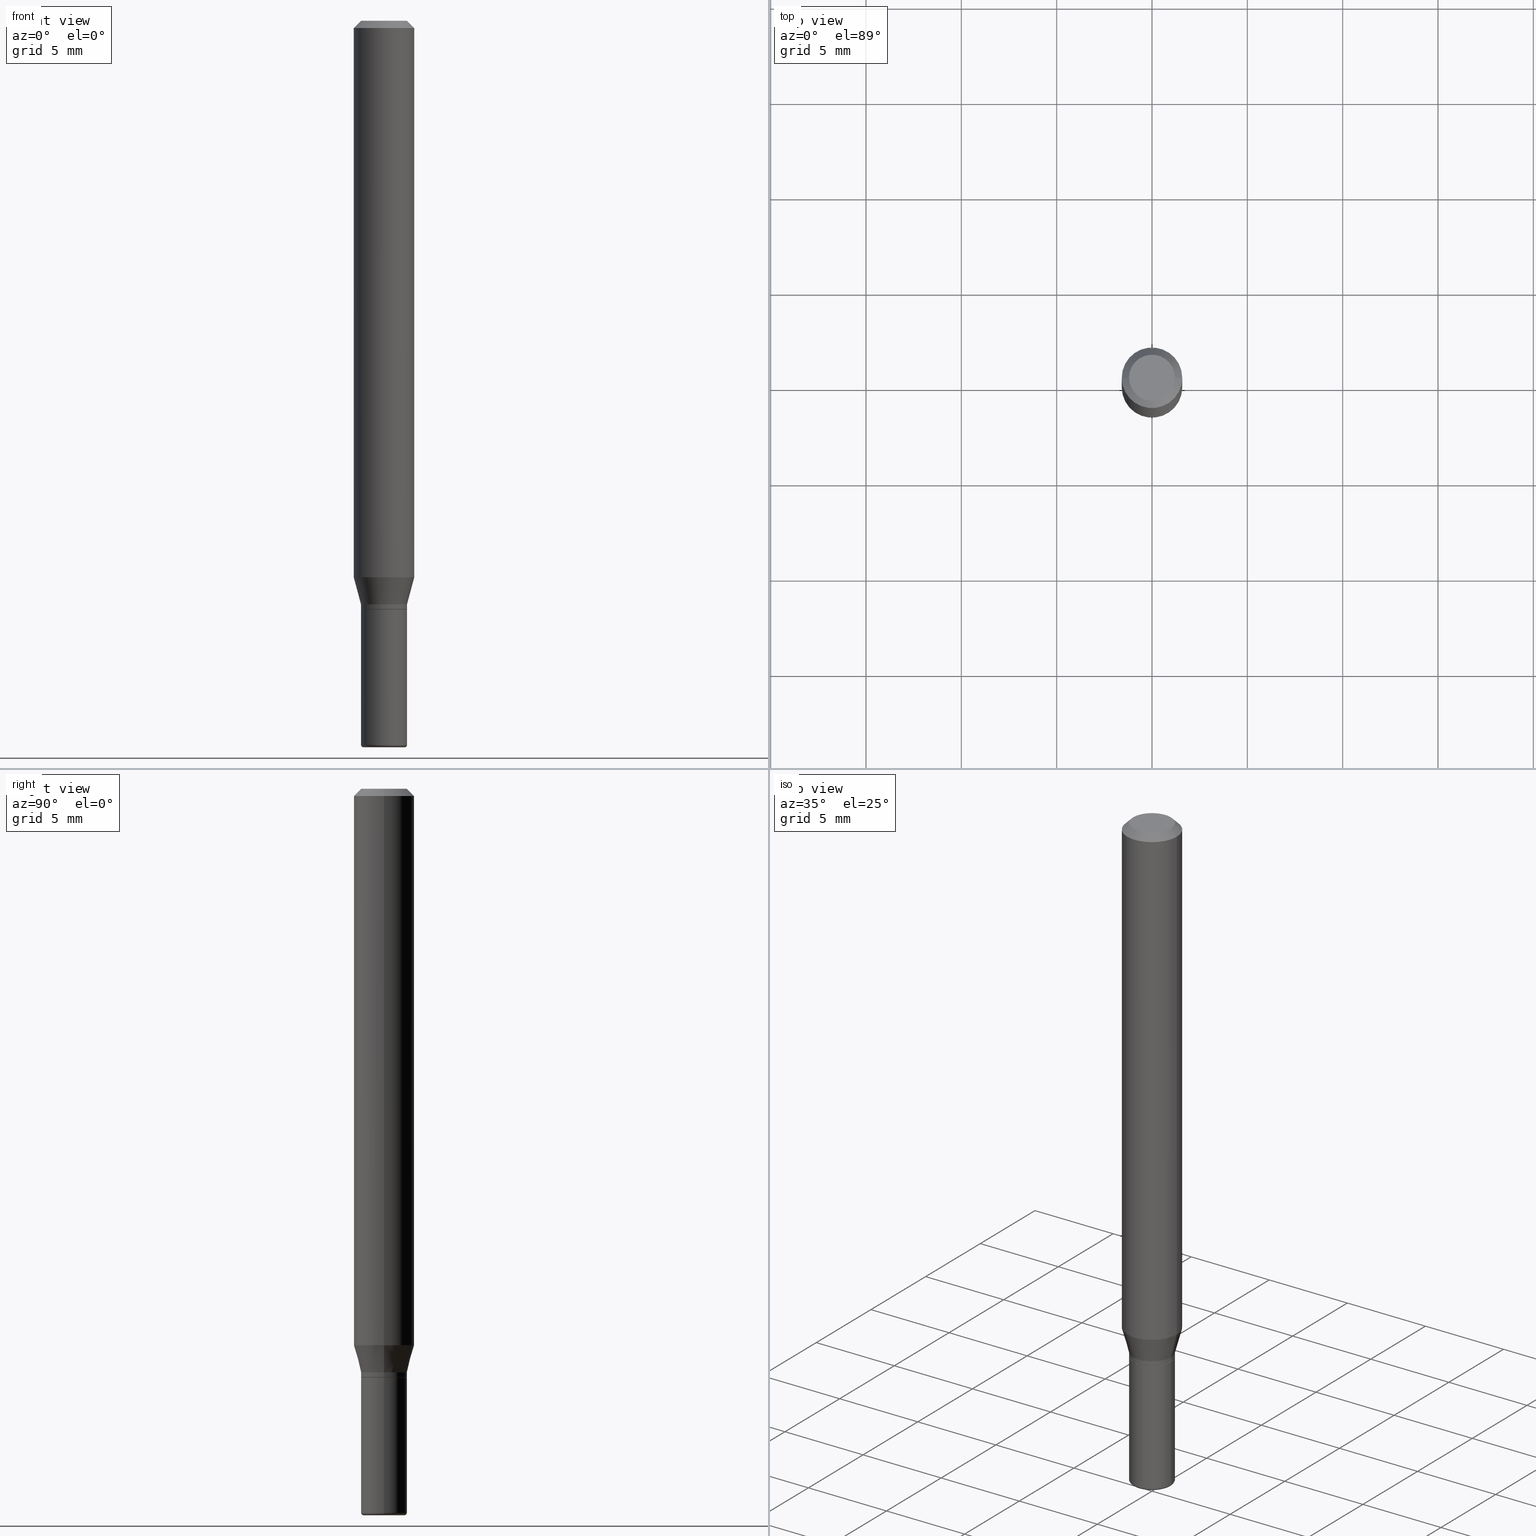
[diagram: canonical four-view strip — front | top / right | iso, engineering-drawing reading convention]
A machine part, canonical four-view strip (front | top / right | iso — engineering-drawing reading convention). The complete STEP part file that produces these views, byte-faithful:
ISO-10303-21;
HEADER;
FILE_DESCRIPTION (( 'STEP AP203' ),
    '1' );
FILE_NAME ('08584.STEP',
    '2024-02-29T19:52:41',
    ( '' ),
    ( '' ),
    'SwSTEP 2.0',
    'SolidWorks 2023',
    '' );
FILE_SCHEMA (( 'CONFIG_CONTROL_DESIGN' ));
ENDSEC;

DATA;
#1 = COORDINATED_UNIVERSAL_TIME_OFFSET ( 5, 0, .BEHIND. ) ;
#2 = ORIENTED_EDGE ( 'NONE', *, *, #54, .F. ) ;
#3 = EDGE_CURVE ( 'NONE', #24, #459, #379, .T. ) ;
#4 = FACE_OUTER_BOUND ( 'NONE', #27, .T. ) ;
#5 = APPROVAL ( #218, 'UNSPECIFIED' ) ;
#6 = VERTEX_POINT ( 'NONE', #428 ) ;
#7 = DIRECTION ( 'NONE',  ( -2.445468806185136597E-29, 3.491481338843145583E-15, 1.000000000000000000 ) ) ;
#8 = CARTESIAN_POINT ( 'NONE',  ( 0.04749999999999994504, -3.316907271900973138E-16, 2.316183968503066979E-30 ) ) ;
#9 = APPROVAL_DATE_TIME ( #47, #13 ) ;
#10 = LOCAL_TIME ( 14, 52, 41.00000000000000000, #495 ) ;
#11 = DIRECTION ( 'NONE',  ( 2.445468806185136597E-29, -3.491481338843145583E-15, -1.000000000000000000 ) ) ;
#12 = CARTESIAN_POINT ( 'NONE',  ( -0.04749999999999994504, 3.375077994860471978E-16, -2.336494167871077458E-30 ) ) ;
#13 = APPROVAL ( #85, 'UNSPECIFIED' ) ;
#14 = CYLINDRICAL_SURFACE ( 'NONE', #312, 0.06250000000000000000 ) ;
#15 = FACE_OUTER_BOUND ( 'NONE', #68, .T. ) ;
#16 = LOCAL_TIME ( 14, 52, 41.00000000000000000, #1 ) ;
#17 = AXIS2_PLACEMENT_3D ( 'NONE', #315, #473, #123 ) ;
#18 = ORIENTED_EDGE ( 'NONE', *, *, #36, .T. ) ;
#19 = TOROIDAL_SURFACE ( 'NONE', #308, 0.04249999999999999611, 0.004999999999999908164 ) ;
#20 = CYLINDRICAL_SURFACE ( 'NONE', #94, 0.04749999999999995198 ) ;
#21 = EDGE_LOOP ( 'NONE', ( #224, #34, #393, #241 ) ) ;
#22 = CARTESIAN_POINT ( 'NONE',  ( 3.316907271901273398E-16, 0.04749999999999575395, -1.215000000000000302 ) ) ;
#23 = EDGE_CURVE ( 'NONE', #424, #24, #238, .T. ) ;
#24 = VERTEX_POINT ( 'NONE', #159 ) ;
#25 = DIRECTION ( 'NONE',  ( 1.000000000000000000, -6.982962677686257244E-15, 0.000000000000000000 ) ) ;
#26 = PERSON_AND_ORGANIZATION ( #406, #139 ) ;
#27 = EDGE_LOOP ( 'NONE', ( #460, #197, #382, #261 ) ) ;
#28 = FACE_OUTER_BOUND ( 'NONE', #371, .T. ) ;
#29 = AXIS2_PLACEMENT_3D ( 'NONE', #240, #7, #88 ) ;
#30 = LOCAL_TIME ( 14, 52, 41.00000000000000000, #142 ) ;
#31 = EDGE_CURVE ( 'NONE', #6, #459, #510, .T. ) ;
#32 = ORIENTED_EDGE ( 'NONE', *, *, #87, .T. ) ;
#33 = DIRECTION ( 'NONE',  ( 1.000000000000000000, -6.982962677686266711E-15, 4.852736867747365086E-29 ) ) ;
#34 = ORIENTED_EDGE ( 'NONE', *, *, #250, .T. ) ;
#35 = CARTESIAN_POINT ( 'NONE',  ( 0.06250000000000000000, -4.364351673553916694E-16, 3.047610484872459871E-30 ) ) ;
#36 = EDGE_CURVE ( 'NONE', #117, #113, #72, .T. ) ;
#37 = DIRECTION ( 'NONE',  ( 2.445468806185136597E-29, -3.491481338843145583E-15, -1.000000000000000000 ) ) ;
#38 = CIRCLE ( 'NONE', #385, 0.04749999999999999362 ) ;
#39 = AXIS2_PLACEMENT_3D ( 'NONE', #209, #488, #361 ) ;
#40 = VERTEX_POINT ( 'NONE', #43 ) ;
#41 = DATE_TIME_ROLE ( 'classification_date' ) ;
#42 = FACE_OUTER_BOUND ( 'NONE', #303, .T. ) ;
#43 = CARTESIAN_POINT ( 'NONE',  ( -0.06250000000000000000, -1.587986513717445910E-15, -0.01499999999999970281 ) ) ;
#44 = AXIS2_PLACEMENT_3D ( 'NONE', #118, #275, #347 ) ;
#45 = APPLICATION_PROTOCOL_DEFINITION ( 'international standard', 'config_control_design', 1994, #484 ) ;
#46 = CIRCLE ( 'NONE', #462, 0.06250000000000000000 ) ;
#47 = DATE_AND_TIME ( #392, #499 ) ;
#48 = ADVANCED_FACE ( 'NONE', ( #42 ), #170, .T. ) ;
#49 = ORIENTED_EDGE ( 'NONE', *, *, #489, .T. ) ;
#50 = ORIENTED_EDGE ( 'NONE', *, *, #250, .F. ) ;
#51 = FACE_OUTER_BOUND ( 'NONE', #214, .T. ) ;
#52 = CARTESIAN_POINT ( 'NONE',  ( 0.04749999999999995198, -3.316907271900973631E-16, 2.316183968503067330E-30 ) ) ;
#53 = CARTESIAN_POINT ( 'NONE',  ( -0.04749999999999995198, 3.375077994860472471E-16, -2.336494167871077808E-30 ) ) ;
#54 = EDGE_CURVE ( 'NONE', #227, #408, #259, .T. ) ;
#55 = DIRECTION ( 'NONE',  ( 0.7071067811865479058, -7.319954787623257623E-15, -0.7071067811865471286 ) ) ;
#56 = AXIS2_PLACEMENT_3D ( 'NONE', #96, #338, #212 ) ;
#57 = CC_DESIGN_APPROVAL ( #5, ( #104 ) ) ;
#58 = DIMENSIONAL_EXPONENTS ( 1.000000000000000000, 0.000000000000000000, 0.000000000000000000, 0.000000000000000000, 0.000000000000000000, 0.000000000000000000, 0.000000000000000000 ) ;
#59 = DIRECTION ( 'NONE',  ( -0.7071067811865479058, 2.468850131082261005E-15, -0.7071067811865471286 ) ) ;
#60 = CARTESIAN_POINT ( 'NONE',  ( 0.000000000000000000, 0.000000000000000000, 0.000000000000000000 ) ) ;
#61 = LINE ( 'NONE', #52, #434 ) ;
#62 = CIRCLE ( 'NONE', #345, 0.04749999999999990341 ) ;
#63 = ORIENTED_EDGE ( 'NONE', *, *, #228, .T. ) ;
#64 = CIRCLE ( 'NONE', #276, 0.04749999999999993811 ) ;
#65 = PLANE ( 'NONE',  #95 ) ;
#66 = CALENDAR_DATE ( 2024, 29, 2 ) ;
#67 = CARTESIAN_POINT ( 'NONE',  ( 3.668203209277632395E-31, -5.237222008264614861E-17, -0.01499999999999970281 ) ) ;
#68 = EDGE_LOOP ( 'NONE', ( #415, #456, #355, #417 ) ) ;
#69 = CARTESIAN_POINT ( 'NONE',  ( 2.971244599514941458E-29, -4.242149826694422488E-15, -1.215000000000000080 ) ) ;
#70 = DATE_AND_TIME ( #66, #30 ) ;
#71 = VERTEX_POINT ( 'NONE', #151 ) ;
#72 = CIRCLE ( 'NONE', #186, 0.04750000000000000749 ) ;
#73 = CONICAL_SURFACE ( 'NONE', #353, 0.06250000000000000000, 0.7853981633974488341 ) ;
#74 = CC_DESIGN_PERSON_AND_ORGANIZATION_ASSIGNMENT ( #449, #177, ( #293 ) ) ;
#75 = DIRECTION ( 'NONE',  ( 1.000000000000000000, -6.982962677686257244E-15, 0.000000000000000000 ) ) ;
#76 = CC_DESIGN_PERSON_AND_ORGANIZATION_ASSIGNMENT ( #423, #232, ( #455 ) ) ;
#77 = ORIENTED_EDGE ( 'NONE', *, *, #503, .F. ) ;
#78 = ORIENTED_EDGE ( 'NONE', *, *, #154, .T. ) ;
#79 = CLOSED_SHELL ( 'NONE', ( #435, #48, #331, #376, #168, #116, #282, #514, #111, #325, #348, #130 ) ) ;
#80 = TOROIDAL_SURFACE ( 'NONE', #165, 0.04249999999999999611, 0.004999999999999908164 ) ;
#81 = DIRECTION ( 'NONE',  ( -0.7071067811866199593, 7.493145998870616062E-15, 0.7071067811864750752 ) ) ;
#82 = ORIENTED_EDGE ( 'NONE', *, *, #444, .F. ) ;
#83 = CARTESIAN_POINT ( 'NONE',  ( 0.04749999999999990341, -5.551455328760601441E-15, -1.495000000000000329 ) ) ;
#84 = EDGE_CURVE ( 'NONE', #463, #192, #461, .T. ) ;
#85 = APPROVAL_STATUS ( 'not_yet_approved' ) ;
#86 = CARTESIAN_POINT ( 'NONE',  ( -0.06250000000000000000, -3.567690017202308146E-15, -1.149019237886466538 ) ) ;
#87 = EDGE_CURVE ( 'NONE', #182, #397, #280, .T. ) ;
#88 = DIRECTION ( 'NONE',  ( 1.000000000000000000, -6.982962677686266711E-15, 0.000000000000000000 ) ) ;
#89 = CIRCLE ( 'NONE', #368, 0.04750000000000000749 ) ;
#90 = DIRECTION ( 'NONE',  ( -2.445468806185136597E-29, 3.491481338843145583E-15, 1.000000000000000000 ) ) ;
#91 = CARTESIAN_POINT ( 'NONE',  ( -6.680649051745406845E-45, 9.538196290434862081E-31, 2.731847993664263218E-16 ) ) ;
#92 = DIRECTION ( 'NONE',  ( -2.445468806185136597E-29, 3.491481338843145583E-15, 1.000000000000000000 ) ) ;
#93 = DIRECTION ( 'NONE',  ( -2.445468806185136597E-29, 3.491481338843145583E-15, 1.000000000000000000 ) ) ;
#94 = AXIS2_PLACEMENT_3D ( 'NONE', #99, #490, #294 ) ;
#95 = AXIS2_PLACEMENT_3D ( 'NONE', #22, #137, #107 ) ;
#96 = CARTESIAN_POINT ( 'NONE',  ( 0.000000000000000000, 0.000000000000000000, 0.000000000000000000 ) ) ;
#97 = DIRECTION ( 'NONE',  ( -2.445468806185136597E-29, 3.491481338843145583E-15, 1.000000000000000000 ) ) ;
#98 = VERTEX_POINT ( 'NONE', #86 ) ;
#99 = CARTESIAN_POINT ( 'NONE',  ( 0.000000000000000000, 0.000000000000000000, 0.000000000000000000 ) ) ;
#100 = DIRECTION ( 'NONE',  ( 0.000000000000000000, 0.000000000000000000, 1.000000000000000000 ) ) ;
#101 = ORIENTED_EDGE ( 'NONE', *, *, #235, .F. ) ;
#102 = DIRECTION ( 'NONE',  ( -2.445468806185136597E-29, 3.491481338843145583E-15, 1.000000000000000000 ) ) ;
#103 = FACE_OUTER_BOUND ( 'NONE', #190, .T. ) ;
#104 = PRODUCT_DEFINITION ( 'UNKNOWN', '', #455, #272 ) ;
#105 = CONICAL_SURFACE ( 'NONE', #274, 0.04749999999999993811, 0.2617993877991493523 ) ;
#106 = ORIENTED_EDGE ( 'NONE', *, *, #246, .T. ) ;
#107 = DIRECTION ( 'NONE',  ( -1.000000000000000000, 6.982962677686265922E-15, -4.876176775795935793E-29 ) ) ;
#108 = EDGE_CURVE ( 'NONE', #192, #98, #318, .T. ) ;
#109 = LINE ( 'NONE', #290, #498 ) ;
#110 = APPROVAL_DATE_TIME ( #70, #5 ) ;
#111 = ADVANCED_FACE ( 'NONE', ( #230 ), #465, .F. ) ;
#112 = ORIENTED_EDGE ( 'NONE', *, *, #444, .T. ) ;
#113 = VERTEX_POINT ( 'NONE', #513 ) ;
#114 = VECTOR ( 'NONE', #220, 39.37007874015748854 ) ;
#115 = CARTESIAN_POINT ( 'NONE',  ( -0.04749999999999993811, -3.869727213819942557E-15, -1.204999999999999849 ) ) ;
#116 = ADVANCED_FACE ( 'NONE', ( #398 ), #468, .T. ) ;
#117 = VERTEX_POINT ( 'NONE', #286 ) ;
#118 = CARTESIAN_POINT ( 'NONE',  ( 2.970021865111848657E-29, -4.240404086025000985E-15, -1.214500000000000357 ) ) ;
#119 = AXIS2_PLACEMENT_3D ( 'NONE', #69, #169, #134 ) ;
#120 = APPROVAL_PERSON_ORGANIZATION ( #247, #13, #245 ) ;
#121 = ORIENTED_EDGE ( 'NONE', *, *, #341, .T. ) ;
#122 = CARTESIAN_POINT ( 'NONE',  ( 3.582686580359765478E-29, -5.359686688179452536E-15, -1.499999999999999778 ) ) ;
#123 = DIRECTION ( 'NONE',  ( 1.000000000000000000, -6.982962677686270655E-15, 0.000000000000000000 ) ) ;
#124 = AXIS2_PLACEMENT_3D ( 'NONE', #448, #100, #419 ) ;
#125 = DIRECTION ( 'NONE',  ( -2.445468806185136597E-29, 3.491481338843145583E-15, 1.000000000000000000 ) ) ;
#126 = DIRECTION ( 'NONE',  ( -2.445468806185136597E-29, 3.491481338843145583E-15, 1.000000000000000000 ) ) ;
#127 = DIRECTION ( 'NONE',  ( 1.000000000000000000, -6.982962677686266711E-15, 0.000000000000000000 ) ) ;
#128 = AXIS2_PLACEMENT_3D ( 'NONE', #205, #126, #289 ) ;
#129 = AXIS2_PLACEMENT_3D ( 'NONE', #67, #11, #485 ) ;
#130 = ADVANCED_FACE ( 'NONE', ( #51 ), #433, .T. ) ;
#131 = LINE ( 'NONE', #409, #164 ) ;
#132 = CARTESIAN_POINT ( 'NONE',  ( 0.04249999999999999611, -5.516540515372169792E-15, -1.495000000000000107 ) ) ;
#133 = ORIENTED_EDGE ( 'NONE', *, *, #138, .F. ) ;
#134 = DIRECTION ( 'NONE',  ( 1.000000000000000000, -6.982962677686265922E-15, 4.876176775795935793E-29 ) ) ;
#135 = DIRECTION ( 'NONE',  ( -2.445468806185136597E-29, 3.491481338843145583E-15, 1.000000000000000000 ) ) ;
#136 = ORIENTED_EDGE ( 'NONE', *, *, #187, .F. ) ;
#137 = DIRECTION ( 'NONE',  ( 2.438088387897960049E-29, -3.491481338843145188E-15, -1.000000000000000000 ) ) ;
#138 = EDGE_CURVE ( 'NONE', #40, #397, #291, .T. ) ;
#139 = ORGANIZATION ( 'UNSPECIFIED', 'UNSPECIFIED', '' ) ;
#140 = EDGE_LOOP ( 'NONE', ( #337, #257, #146, #420 ) ) ;
#141 = DIRECTION ( 'NONE',  ( -2.445468806185136597E-29, 3.491481338843145583E-15, 1.000000000000000000 ) ) ;
#142 = COORDINATED_UNIVERSAL_TIME_OFFSET ( 5, 0, .BEHIND. ) ;
#143 = ORIENTED_EDGE ( 'NONE', *, *, #31, .F. ) ;
#144 = ORIENTED_EDGE ( 'NONE', *, *, #187, .T. ) ;
#145 = LENGTH_MEASURE_WITH_UNIT ( LENGTH_MEASURE( 0.02539999999999999897 ), #440 );
#146 = ORIENTED_EDGE ( 'NONE', *, *, #362, .T. ) ;
#147 = CARTESIAN_POINT ( 'NONE',  ( -0.04749999999999990341, -4.393449414646416504E-15, -1.495000000000000329 ) ) ;
#148 = AXIS2_PLACEMENT_3D ( 'NONE', #391, #317, #166 ) ;
#149 = CIRCLE ( 'NONE', #333, 0.06250000000000000000 ) ;
#150 = EDGE_CURVE ( 'NONE', #411, #408, #366, .T. ) ;
#151 = CARTESIAN_POINT ( 'NONE',  ( 0.04249999999999999611, -5.533997922066384039E-15, -1.499999999999999778 ) ) ;
#152 = ORIENTED_EDGE ( 'NONE', *, *, #31, .T. ) ;
#153 = CARTESIAN_POINT ( 'NONE',  ( 3.655975865246779122E-29, -5.219764601570503141E-15, -1.495000000000000107 ) ) ;
#154 = EDGE_CURVE ( 'NONE', #424, #6, #506, .T. ) ;
#155 = CARTESIAN_POINT ( 'NONE',  ( 0.04699999999999995154, -4.570349072545676203E-15, -1.215000000000000080 ) ) ;
#156 = DIRECTION ( 'NONE',  ( 1.000000000000000000, -6.982962677686265922E-15, 4.876176775795935793E-29 ) ) ;
#157 = ORIENTED_EDGE ( 'NONE', *, *, #160, .F. ) ;
#158 = DATE_AND_TIME ( #431, #16 ) ;
#159 = CARTESIAN_POINT ( 'NONE',  ( -0.04749999999999995198, -3.902896286538954280E-15, -1.214500000000000357 ) ) ;
#160 = EDGE_CURVE ( 'NONE', #459, #24, #413, .T. ) ;
#161 = CARTESIAN_POINT ( 'NONE',  ( 0.06250000000000000000, -4.448214394407762432E-15, -1.149019237886466538 ) ) ;
#162 = CIRCLE ( 'NONE', #193, 0.04249999999999999611 ) ;
#163 = CARTESIAN_POINT ( 'NONE',  ( 2.946789911453088792E-29, -4.207235013305990050E-15, -1.204999999999999849 ) ) ;
#164 = VECTOR ( 'NONE', #59, 39.37007874015748143 ) ;
#165 = AXIS2_PLACEMENT_3D ( 'NONE', #153, #511, #381 ) ;
#166 = DIRECTION ( 'NONE',  ( -1.000000000000000000, 7.105427357601061812E-15, 0.000000000000000000 ) ) ;
#167 = DIRECTION ( 'NONE',  ( 1.000000000000000000, -6.982962677686261977E-15, 0.000000000000000000 ) ) ;
#168 = ADVANCED_FACE ( 'NONE', ( #4 ), #105, .T. ) ;
#169 = DIRECTION ( 'NONE',  ( -2.438088387897960049E-29, 3.491481338843145188E-15, 1.000000000000000000 ) ) ;
#170 = CONICAL_SURFACE ( 'NONE', #225, 0.04699999999999995154, 0.7853981633975507526 ) ;
#171 = VECTOR ( 'NONE', #287, 39.37007874015748143 ) ;
#172 = ORIENTED_EDGE ( 'NONE', *, *, #494, .F. ) ;
#173 = DIRECTION ( 'NONE',  ( -2.445468806185136597E-29, 3.491481338843145583E-15, 1.000000000000000000 ) ) ;
#174 = COORDINATED_UNIVERSAL_TIME_OFFSET ( 5, 0, .BEHIND. ) ;
#175 = ORIENTED_EDGE ( 'NONE', *, *, #150, .T. ) ;
#176 = DIRECTION ( 'NONE',  ( -2.445468806185136597E-29, 3.491481338843145583E-15, 1.000000000000000000 ) ) ;
#177 = PERSON_AND_ORGANIZATION_ROLE ( 'classification_officer' ) ;
#178 = ORIENTED_EDGE ( 'NONE', *, *, #138, .T. ) ;
#179 = DIRECTION ( 'NONE',  ( -2.445468806185136597E-29, 3.491481338843145583E-15, 1.000000000000000000 ) ) ;
#180 = VECTOR ( 'NONE', #271, 39.37007874015748854 ) ;
#181 = CC_DESIGN_APPROVAL ( #13, ( #293 ) ) ;
#182 = VERTEX_POINT ( 'NONE', #161 ) ;
#183 = ORIENTED_EDGE ( 'NONE', *, *, #475, .T. ) ;
#184 = ADVANCED_FACE ( 'NONE', ( #322 ), #437, .F. ) ;
#185 = CARTESIAN_POINT ( 'NONE',  ( 3.316907271900976589E-16, 0.04750000000000000749, -2.925296391183627249E-17 ) ) ;
#186 = AXIS2_PLACEMENT_3D ( 'NONE', #313, #273, #508 ) ;
#187 = EDGE_CURVE ( 'NONE', #408, #512, #401, .T. ) ;
#188 = DIRECTION ( 'NONE',  ( 1.000000000000000000, -6.982962677686257244E-15, 0.000000000000000000 ) ) ;
#189 = PERSON_AND_ORGANIZATION ( #406, #139 ) ;
#190 = EDGE_LOOP ( 'NONE', ( #384, #183, #342, #82 ) ) ;
#191 = DATE_TIME_ROLE ( 'creation_date' ) ;
#192 = VERTEX_POINT ( 'NONE', #326 ) ;
#193 = AXIS2_PLACEMENT_3D ( 'NONE', #223, #141, #497 ) ;
#194 = CARTESIAN_POINT ( 'NONE',  ( 2.946789911453088792E-29, -4.207235013305990050E-15, -1.204999999999999849 ) ) ;
#195 = AXIS2_PLACEMENT_3D ( 'NONE', #504, #378, #75 ) ;
#196 = APPROVAL_ROLE ( '' ) ;
#197 = ORIENTED_EDGE ( 'NONE', *, *, #108, .T. ) ;
#198 = DIRECTION ( 'NONE',  ( -1.000000000000000000, 6.982962677686265922E-15, -4.876176775795935793E-29 ) ) ;
#199 =( NAMED_UNIT ( * ) SI_UNIT ( $, .STERADIAN. ) SOLID_ANGLE_UNIT ( ) );
#200 = MANIFOLD_SOLID_BREP ( 'Body-Move/Copy2[2]', #79 ) ;
#201 = ORIENTED_EDGE ( 'NONE', *, *, #509, .T. ) ;
#202 = DIRECTION ( 'NONE',  ( 1.000000000000000000, -6.982962677686267499E-15, 4.876176775795936353E-29 ) ) ;
#203 = DIRECTION ( 'NONE',  ( -2.445468806185136877E-29, 3.491481338843145188E-15, 1.000000000000000000 ) ) ;
#204 = COORDINATED_UNIVERSAL_TIME_OFFSET ( 5, 0, .BEHIND. ) ;
#205 = CARTESIAN_POINT ( 'NONE',  ( 2.970021865111848657E-29, -4.240404086025000985E-15, -1.214500000000000357 ) ) ;
#206 = VECTOR ( 'NONE', #81, 39.37007874015748143 ) ;
#207 = LOCAL_TIME ( 14, 52, 41.00000000000000000, #174 ) ;
#208 = DIRECTION ( 'NONE',  ( -1.000000000000000000, 6.982962677686266711E-15, 0.000000000000000000 ) ) ;
#209 = CARTESIAN_POINT ( 'NONE',  ( 2.971244599514941458E-29, -4.242149826694422488E-15, -1.215000000000000080 ) ) ;
#210 = APPLICATION_CONTEXT ( 'configuration controlled 3d designs of mechanical parts and assemblies' ) ;
#211 = EDGE_CURVE ( 'NONE', #408, #227, #62, .T. ) ;
#212 = DIRECTION ( 'NONE',  ( 1.000000000000000000, -6.982962677686267499E-15, 4.876176775795936353E-29 ) ) ;
#213 = PERSON_AND_ORGANIZATION ( #406, #139 ) ;
#214 = EDGE_LOOP ( 'NONE', ( #222, #446, #112, #172 ) ) ;
#215 = FACE_OUTER_BOUND ( 'NONE', #500, .T. ) ;
#216 = LINE ( 'NONE', #8, #486 ) ;
#217 = CC_DESIGN_PERSON_AND_ORGANIZATION_ASSIGNMENT ( #213, #369, ( #104 ) ) ;
#218 = APPROVAL_STATUS ( 'not_yet_approved' ) ;
#219 = CC_DESIGN_PERSON_AND_ORGANIZATION_ASSIGNMENT ( #507, #464, ( #455 ) ) ;
#220 = DIRECTION ( 'NONE',  ( 0.2588190451025206285, 1.565188264969627095E-15, 0.9659258262890682012 ) ) ;
#221 = FACE_OUTER_BOUND ( 'NONE', #311, .T. ) ;
#222 = ORIENTED_EDGE ( 'NONE', *, *, #475, .F. ) ;
#223 = CARTESIAN_POINT ( 'NONE',  ( 3.668203209277704335E-29, -5.237222008264717388E-15, -1.499999999999999778 ) ) ;
#224 = ORIENTED_EDGE ( 'NONE', *, *, #351, .T. ) ;
#225 = AXIS2_PLACEMENT_3D ( 'NONE', #277, #239, #188 ) ;
#226 = CONICAL_SURFACE ( 'NONE', #268, 0.04699999999999995154, 0.7853981633975507526 ) ;
#227 = VERTEX_POINT ( 'NONE', #83 ) ;
#228 = EDGE_CURVE ( 'NONE', #309, #512, #38, .T. ) ;
#229 = ORIENTED_EDGE ( 'NONE', *, *, #489, .F. ) ;
#230 = FACE_OUTER_BOUND ( 'NONE', #364, .T. ) ;
#231 = AXIS2_PLACEMENT_3D ( 'NONE', #185, #474, #198 ) ;
#232 = PERSON_AND_ORGANIZATION_ROLE ( 'creator' ) ;
#233 = CARTESIAN_POINT ( 'NONE',  ( -0.04699999999999995154, -3.908194740887175893E-15, -1.215000000000000080 ) ) ;
#234 = CC_DESIGN_APPROVAL ( #256, ( #455 ) ) ;
#235 = EDGE_CURVE ( 'NONE', #113, #40, #131, .T. ) ;
#236 = APPROVAL_PERSON_ORGANIZATION ( #189, #256, #196 ) ;
#237 = DATE_AND_TIME ( #491, #207 ) ;
#238 = LINE ( 'NONE', #233, #206 ) ;
#239 = DIRECTION ( 'NONE',  ( -2.445468806185136597E-29, 3.491481338843145583E-15, 1.000000000000000000 ) ) ;
#240 = CARTESIAN_POINT ( 'NONE',  ( 3.668203209277632395E-31, -5.237222008264614861E-17, -0.01499999999999970281 ) ) ;
#241 = ORIENTED_EDGE ( 'NONE', *, *, #87, .F. ) ;
#242 = AXIS2_PLACEMENT_3D ( 'NONE', #517, #390, #352 ) ;
#243 = CARTESIAN_POINT ( 'NONE',  ( 2.971244599514941458E-29, -4.242149826694422488E-15, -1.215000000000000080 ) ) ;
#244 =( CONVERSION_BASED_UNIT ( 'INCH', #145 ) LENGTH_UNIT ( ) NAMED_UNIT ( #58 ) );
#245 = APPROVAL_ROLE ( '' ) ;
#246 = EDGE_CURVE ( 'NONE', #71, #411, #162, .T. ) ;
#247 = PERSON_AND_ORGANIZATION ( #406, #139 ) ;
#248 = DIRECTION ( 'NONE',  ( -2.438088387897960049E-29, 3.491481338843145188E-15, 1.000000000000000000 ) ) ;
#249 = DIRECTION ( 'NONE',  ( -2.445468806185136597E-29, 3.491481338843145583E-15, 1.000000000000000000 ) ) ;
#250 = EDGE_CURVE ( 'NONE', #98, #40, #109, .T. ) ;
#251 = DIRECTION ( 'NONE',  ( 1.000000000000000000, -6.982962677686276177E-15, 0.000000000000000000 ) ) ;
#252 = CARTESIAN_POINT ( 'NONE',  ( 0.04749999999999993811, -4.538925740496087561E-15, -1.204999999999999849 ) ) ;
#253 = ORIENTED_EDGE ( 'NONE', *, *, #246, .F. ) ;
#254 = CYLINDRICAL_SURFACE ( 'NONE', #323, 0.06250000000000000000 ) ;
#255 = PERSON_AND_ORGANIZATION_ROLE ( 'design_owner' ) ;
#256 = APPROVAL ( #279, 'UNSPECIFIED' ) ;
#257 = ORIENTED_EDGE ( 'NONE', *, *, #494, .T. ) ;
#258 = DIRECTION ( 'NONE',  ( -2.445468806185136597E-29, 3.491481338843145583E-15, 1.000000000000000000 ) ) ;
#259 = CIRCLE ( 'NONE', #242, 0.04749999999999990341 ) ;
#260 = CIRCLE ( 'NONE', #442, 0.04249999999999999611 ) ;
#261 = ORIENTED_EDGE ( 'NONE', *, *, #362, .F. ) ;
#262 = FACE_OUTER_BOUND ( 'NONE', #350, .T. ) ;
#263 = ORIENTED_EDGE ( 'NONE', *, *, #36, .F. ) ;
#264 = FACE_OUTER_BOUND ( 'NONE', #354, .T. ) ;
#265 = ORIENTED_EDGE ( 'NONE', *, *, #451, .F. ) ;
#266 = EDGE_CURVE ( 'NONE', #98, #182, #454, .T. ) ;
#267 = CLOSED_SHELL ( 'NONE', ( #400, #316, #389, #320, #436, #184 ) ) ;
#268 = AXIS2_PLACEMENT_3D ( 'NONE', #487, #176, #25 ) ;
#269 = EDGE_LOOP ( 'NONE', ( #306, #78, #152, #467 ) ) ;
#270 = APPROVAL_DATE_TIME ( #158, #256 ) ;
#271 = DIRECTION ( 'NONE',  ( -0.2588190451025206285, 5.211531920934544731E-15, 0.9659258262890682012 ) ) ;
#272 = DESIGN_CONTEXT ( 'detailed design', #210, 'design' ) ;
#273 = DIRECTION ( 'NONE',  ( -2.445468806185136597E-29, 3.491481338843145583E-15, 1.000000000000000000 ) ) ;
#274 = AXIS2_PLACEMENT_3D ( 'NONE', #477, #90, #472 ) ;
#275 = DIRECTION ( 'NONE',  ( -2.445468806185136597E-29, 3.491481338843145583E-15, 1.000000000000000000 ) ) ;
#276 = AXIS2_PLACEMENT_3D ( 'NONE', #163, #324, #438 ) ;
#277 = CARTESIAN_POINT ( 'NONE',  ( 2.971244599514941458E-29, -4.242149826694422488E-15, -1.215000000000000080 ) ) ;
#278 = PRODUCT_RELATED_PRODUCT_CATEGORY ( 'detail', '', ( #469 ) ) ;
#279 = APPROVAL_STATUS ( 'not_yet_approved' ) ;
#280 = LINE ( 'NONE', #35, #402 ) ;
#281 = DIRECTION ( 'NONE',  ( 1.000000000000000000, -6.982962677686270655E-15, 0.000000000000000000 ) ) ;
#282 = ADVANCED_FACE ( 'NONE', ( #457 ), #14, .T. ) ;
#283 = VECTOR ( 'NONE', #358, 39.37007874015748143 ) ;
#284 = DIRECTION ( 'NONE',  ( 1.000000000000000000, -6.982962677686257244E-15, 0.000000000000000000 ) ) ;
#285 = CIRCLE ( 'NONE', #515, 0.004999999999999903827 ) ;
#286 = CARTESIAN_POINT ( 'NONE',  ( 0.04750000000000000749, -4.035134999187568762E-16, 2.731847993664288856E-16 ) ) ;
#287 = DIRECTION ( 'NONE',  ( -2.445468806185136877E-29, 3.491481338843145188E-15, 1.000000000000000000 ) ) ;
#288 = UNCERTAINTY_MEASURE_WITH_UNIT (LENGTH_MEASURE( 1.000000000000000082E-05 ), #244, 'distance_accuracy_value', 'NONE');
#289 = DIRECTION ( 'NONE',  ( 1.000000000000000000, -6.982962677686268288E-15, 0.000000000000000000 ) ) ;
#290 = CARTESIAN_POINT ( 'NONE',  ( -0.06250000000000000000, 4.440892098500626162E-16, -3.074334431409316114E-30 ) ) ;
#291 = CIRCLE ( 'NONE', #29, 0.06250000000000000000 ) ;
#292 = CYLINDRICAL_SURFACE ( 'NONE', #394, 0.04749999999999994504 ) ;
#293 = SECURITY_CLASSIFICATION ( '', '', #458 ) ;
#294 = DIRECTION ( 'NONE',  ( 1.000000000000000000, -6.982962677686267499E-15, 4.876176775795936353E-29 ) ) ;
#295 = DIRECTION ( 'NONE',  ( 1.000000000000000000, -6.982962677686273021E-15, 0.000000000000000000 ) ) ;
#296 = CARTESIAN_POINT ( 'NONE',  ( 3.668203209277632395E-31, -5.237222008264614861E-17, -0.01499999999999970281 ) ) ;
#297 = DIRECTION ( 'NONE',  ( 1.000000000000000000, -6.982962677686267499E-15, 4.876176775795936353E-29 ) ) ;
#298 = CARTESIAN_POINT ( 'NONE',  ( 3.668203209277704335E-29, -5.237222008264717388E-15, -1.499999999999999778 ) ) ;
#299 = ORIENTED_EDGE ( 'NONE', *, *, #211, .T. ) ;
#300 = CARTESIAN_POINT ( 'NONE',  ( 2.809890703957972484E-29, -4.011779227052370762E-15, -1.149019237886466538 ) ) ;
#301 = AXIS2_PLACEMENT_3D ( 'NONE', #300, #173, #304 ) ;
#302 = CALENDAR_DATE ( 2024, 29, 2 ) ;
#303 = EDGE_LOOP ( 'NONE', ( #201, #335, #157, #143 ) ) ;
#304 = DIRECTION ( 'NONE',  ( 1.000000000000000000, -6.982962677686270655E-15, 0.000000000000000000 ) ) ;
#305 = ORIENTED_EDGE ( 'NONE', *, *, #154, .F. ) ;
#306 = ORIENTED_EDGE ( 'NONE', *, *, #23, .F. ) ;
#307 = AXIS2_PLACEMENT_3D ( 'NONE', #518, #92, #202 ) ;
#308 = AXIS2_PLACEMENT_3D ( 'NONE', #359, #93, #332 ) ;
#309 = VERTEX_POINT ( 'NONE', #375 ) ;
#310 = EDGE_LOOP ( 'NONE', ( #50, #492, #32, #133 ) ) ;
#311 = EDGE_LOOP ( 'NONE', ( #265, #77, #502, #178 ) ) ;
#312 = AXIS2_PLACEMENT_3D ( 'NONE', #60, #365, #334 ) ;
#313 = CARTESIAN_POINT ( 'NONE',  ( -6.680649051745406845E-45, 9.538196290434862081E-31, 2.731847993664263218E-16 ) ) ;
#314 = ADVANCED_BREP_SHAPE_REPRESENTATION ( '08584', ( #370, #200, #124 ), #346 ) ;
#315 = CARTESIAN_POINT ( 'NONE',  ( 2.946789911453088792E-29, -4.207235013305990050E-15, -1.204999999999999849 ) ) ;
#316 = ADVANCED_FACE ( 'NONE', ( #264 ), #327, .T. ) ;
#317 = DIRECTION ( 'NONE',  ( 7.105427357601001859E-15, 1.000000000000000000, -3.491481338843145583E-15 ) ) ;
#318 = LINE ( 'NONE', #115, #180 ) ;
#319 = CARTESIAN_POINT ( 'NONE',  ( 3.668203209277632395E-31, -5.237222008264614861E-17, -0.01499999999999970281 ) ) ;
#320 = ADVANCED_FACE ( 'NONE', ( #215 ), #20, .T. ) ;
#321 = AXIS2_PLACEMENT_3D ( 'NONE', #194, #125, #281 ) ;
#322 = FACE_OUTER_BOUND ( 'NONE', #344, .T. ) ;
#323 = AXIS2_PLACEMENT_3D ( 'NONE', #493, #258, #373 ) ;
#324 = DIRECTION ( 'NONE',  ( -2.445468806185136597E-29, 3.491481338843145583E-15, 1.000000000000000000 ) ) ;
#325 = ADVANCED_FACE ( 'NONE', ( #418 ), #453, .F. ) ;
#326 = CARTESIAN_POINT ( 'NONE',  ( -0.04749999999999993811, -3.718708615511125351E-15, -1.204999999999999849 ) ) ;
#327 = CYLINDRICAL_SURFACE ( 'NONE', #56, 0.04749999999999995198 ) ;
#328 = CARTESIAN_POINT ( 'NONE',  ( 0.000000000000000000, 0.000000000000000000, 0.000000000000000000 ) ) ;
#329 =( NAMED_UNIT ( * ) PLANE_ANGLE_UNIT ( ) SI_UNIT ( $, .RADIAN. ) );
#330 = DIRECTION ( 'NONE',  ( -2.445468806185136597E-29, 3.491481338843145583E-15, 1.000000000000000000 ) ) ;
#331 = ADVANCED_FACE ( 'NONE', ( #360 ), #480, .T. ) ;
#332 = DIRECTION ( 'NONE',  ( 1.000000000000000000, -6.982962677686275388E-15, 4.883557194083115704E-29 ) ) ;
#333 = AXIS2_PLACEMENT_3D ( 'NONE', #450, #102, #336 ) ;
#334 = DIRECTION ( 'NONE',  ( 1.000000000000000000, -6.982962677686266711E-15, 4.876176775795935793E-29 ) ) ;
#335 = ORIENTED_EDGE ( 'NONE', *, *, #23, .T. ) ;
#336 = DIRECTION ( 'NONE',  ( 1.000000000000000000, -6.982962677686270655E-15, 0.000000000000000000 ) ) ;
#337 = ORIENTED_EDGE ( 'NONE', *, *, #108, .F. ) ;
#338 = DIRECTION ( 'NONE',  ( -2.445468806185136597E-29, 3.491481338843145583E-15, 1.000000000000000000 ) ) ;
#339 = PERSON_AND_ORGANIZATION ( #406, #139 ) ;
#340 = VECTOR ( 'NONE', #55, 39.37007874015748143 ) ;
#341 = EDGE_CURVE ( 'NONE', #397, #40, #46, .T. ) ;
#342 = ORIENTED_EDGE ( 'NONE', *, *, #84, .F. ) ;
#343 = APPLICATION_PROTOCOL_DEFINITION ( 'international standard', 'config_control_design', 1994, #210 ) ;
#344 = EDGE_LOOP ( 'NONE', ( #253, #387 ) ) ;
#345 = AXIS2_PLACEMENT_3D ( 'NONE', #439, #482, #430 ) ;
#346 =( GEOMETRIC_REPRESENTATION_CONTEXT ( 3 ) GLOBAL_UNCERTAINTY_ASSIGNED_CONTEXT ( ( #288 ) ) GLOBAL_UNIT_ASSIGNED_CONTEXT ( ( #244, #329, #199 ) ) REPRESENTATION_CONTEXT ( 'NONE', 'WORKASPACE' ) );
#347 = DIRECTION ( 'NONE',  ( 1.000000000000000000, -6.982962677686268288E-15, 0.000000000000000000 ) ) ;
#348 = ADVANCED_FACE ( 'NONE', ( #447 ), #226, .T. ) ;
#349 = ORIENTED_EDGE ( 'NONE', *, *, #478, .F. ) ;
#350 = EDGE_LOOP ( 'NONE', ( #63, #429 ) ) ;
#351 = EDGE_CURVE ( 'NONE', #182, #98, #149, .T. ) ;
#352 = DIRECTION ( 'NONE',  ( 1.000000000000000000, -6.982962677686275388E-15, 0.000000000000000000 ) ) ;
#353 = AXIS2_PLACEMENT_3D ( 'NONE', #319, #37, #208 ) ;
#354 = EDGE_LOOP ( 'NONE', ( #505, #144, #452, #229 ) ) ;
#355 = ORIENTED_EDGE ( 'NONE', *, *, #478, .T. ) ;
#356 = CARTESIAN_POINT ( 'NONE',  ( -0.04699999999999995154, -3.905545513713064692E-15, -1.215000000000000080 ) ) ;
#357 = CIRCLE ( 'NONE', #195, 0.04699999999999995154 ) ;
#358 = DIRECTION ( 'NONE',  ( -2.445468806185136877E-29, 3.491481338843145188E-15, 1.000000000000000000 ) ) ;
#359 = CARTESIAN_POINT ( 'NONE',  ( 3.655975865246779122E-29, -5.219764601570503141E-15, -1.495000000000000107 ) ) ;
#360 = FACE_OUTER_BOUND ( 'NONE', #374, .T. ) ;
#361 = DIRECTION ( 'NONE',  ( 1.000000000000000000, -6.982962677686261977E-15, 0.000000000000000000 ) ) ;
#362 = EDGE_CURVE ( 'NONE', #463, #182, #443, .T. ) ;
#363 = DIRECTION ( 'NONE',  ( -2.445468806185136877E-29, 3.491481338843145188E-15, 1.000000000000000000 ) ) ;
#364 = EDGE_LOOP ( 'NONE', ( #377, #18 ) ) ;
#365 = DIRECTION ( 'NONE',  ( -2.445468806185136597E-29, 3.491481338843145583E-15, 1.000000000000000000 ) ) ;
#366 = CIRCLE ( 'NONE', #148, 0.004999999999999903827 ) ;
#367 = CARTESIAN_POINT ( 'NONE',  ( 0.06250000000000000000, -4.811533449433669144E-16, -0.01499999999999970281 ) ) ;
#368 = AXIS2_PLACEMENT_3D ( 'NONE', #91, #249, #33 ) ;
#369 = PERSON_AND_ORGANIZATION_ROLE ( 'creator' ) ;
#370 = MANIFOLD_SOLID_BREP ( 'Body-Move/Copy2[1]', #267 ) ;
#371 = EDGE_LOOP ( 'NONE', ( #106, #175, #2, #349 ) ) ;
#372 = CARTESIAN_POINT ( 'NONE',  ( -0.04249999999999999611, -4.908749073825566080E-15, -1.499999999999999778 ) ) ;
#373 = DIRECTION ( 'NONE',  ( 1.000000000000000000, -6.982962677686266711E-15, 4.876176775795935793E-29 ) ) ;
#374 = EDGE_LOOP ( 'NONE', ( #263, #470, #121, #101 ) ) ;
#375 = CARTESIAN_POINT ( 'NONE',  ( 0.04749999999999999362, -4.573840553884519999E-15, -1.215000000000000080 ) ) ;
#376 = ADVANCED_FACE ( 'NONE', ( #405 ), #254, .T. ) ;
#377 = ORIENTED_EDGE ( 'NONE', *, *, #503, .T. ) ;
#378 = DIRECTION ( 'NONE',  ( -2.445468806185136597E-29, 3.491481338843145583E-15, 1.000000000000000000 ) ) ;
#379 = CIRCLE ( 'NONE', #44, 0.04749999999999995198 ) ;
#380 = ORIENTED_EDGE ( 'NONE', *, *, #509, .F. ) ;
#381 = DIRECTION ( 'NONE',  ( 1.000000000000000000, -6.982962677686275388E-15, 4.883557194083115704E-29 ) ) ;
#382 = ORIENTED_EDGE ( 'NONE', *, *, #351, .F. ) ;
#383 = CC_DESIGN_PERSON_AND_ORGANIZATION_ASSIGNMENT ( #26, #255, ( #469 ) ) ;
#384 = ORIENTED_EDGE ( 'NONE', *, *, #160, .T. ) ;
#385 = AXIS2_PLACEMENT_3D ( 'NONE', #412, #179, #167 ) ;
#386 = APPROVAL_PERSON_ORGANIZATION ( #339, #5, #407 ) ;
#387 = ORIENTED_EDGE ( 'NONE', *, *, #422, .F. ) ;
#388 = DIRECTION ( 'NONE',  ( 0.7071067811866199593, -2.468850131083015945E-15, 0.7071067811864750752 ) ) ;
#389 = ADVANCED_FACE ( 'NONE', ( #262 ), #65, .F. ) ;
#390 = DIRECTION ( 'NONE',  ( -2.445468806185136597E-29, 3.491481338843145583E-15, 1.000000000000000000 ) ) ;
#391 = CARTESIAN_POINT ( 'NONE',  ( -0.04249999999999999611, -4.917783938872460688E-15, -1.495000000000000107 ) ) ;
#392 = CALENDAR_DATE ( 2024, 29, 2 ) ;
#393 = ORIENTED_EDGE ( 'NONE', *, *, #341, .F. ) ;
#394 = AXIS2_PLACEMENT_3D ( 'NONE', #328, #135, #297 ) ;
#395 = DIRECTION ( 'NONE',  ( -2.445468806185136597E-29, 3.491481338843145583E-15, 1.000000000000000000 ) ) ;
#396 = SHAPE_DEFINITION_REPRESENTATION ( #476, #314 ) ;
#397 = VERTEX_POINT ( 'NONE', #416 ) ;
#398 = FACE_OUTER_BOUND ( 'NONE', #140, .T. ) ;
#399 = DIRECTION ( 'NONE',  ( -6.982962677686266711E-15, -1.000000000000000000, 3.491481338843145583E-15 ) ) ;
#400 = ADVANCED_FACE ( 'NONE', ( #28 ), #80, .T. ) ;
#401 = LINE ( 'NONE', #53, #283 ) ;
#402 = VECTOR ( 'NONE', #432, 39.37007874015748143 ) ;
#403 = CIRCLE ( 'NONE', #39, 0.04749999999999999362 ) ;
#404 = DIRECTION ( 'NONE',  ( -2.445468806185136877E-29, 3.491481338843145188E-15, 1.000000000000000000 ) ) ;
#405 = FACE_OUTER_BOUND ( 'NONE', #21, .T. ) ;
#406 = PERSON ( 'UNSPECIFIED', 'UNSPECIFIED', 'UNSPECIFIED', ('UNSPECIFIED'), ('UNSPECIFIED'), ('UNSPECIFIED') ) ;
#407 = APPROVAL_ROLE ( '' ) ;
#408 = VERTEX_POINT ( 'NONE', #147 ) ;
#409 = CARTESIAN_POINT ( 'NONE',  ( -0.06250000000000000000, 3.840629472727455270E-16, -0.01499999999999970281 ) ) ;
#410 = CARTESIAN_POINT ( 'NONE',  ( 0.04749999999999993811, -4.538925740496087561E-15, -1.204999999999999849 ) ) ;
#411 = VERTEX_POINT ( 'NONE', #372 ) ;
#412 = CARTESIAN_POINT ( 'NONE',  ( 2.971244599514941458E-29, -4.242149826694422488E-15, -1.215000000000000080 ) ) ;
#413 = CIRCLE ( 'NONE', #128, 0.04749999999999995198 ) ;
#414 = CC_DESIGN_DATE_AND_TIME_ASSIGNMENT ( #237, #191, ( #104 ) ) ;
#415 = ORIENTED_EDGE ( 'NONE', *, *, #150, .F. ) ;
#416 = CARTESIAN_POINT ( 'NONE',  ( 0.06250000000000000000, -4.888073874380378612E-16, -0.01499999999999970281 ) ) ;
#417 = ORIENTED_EDGE ( 'NONE', *, *, #211, .F. ) ;
#418 = FACE_OUTER_BOUND ( 'NONE', #496, .T. ) ;
#419 = DIRECTION ( 'NONE',  ( 1.000000000000000000, 0.000000000000000000, 0.000000000000000000 ) ) ;
#420 = ORIENTED_EDGE ( 'NONE', *, *, #266, .F. ) ;
#421 = CARTESIAN_POINT ( 'NONE',  ( -0.04749999999999999362, -4.393449414646416504E-15, -1.215000000000000080 ) ) ;
#422 = EDGE_CURVE ( 'NONE', #411, #71, #260, .T. ) ;
#423 = PERSON_AND_ORGANIZATION ( #406, #139 ) ;
#424 = VERTEX_POINT ( 'NONE', #356 ) ;
#425 = ORIENTED_EDGE ( 'NONE', *, *, #466, .F. ) ;
#426 = AXIS2_PLACEMENT_3D ( 'NONE', #122, #248, #156 ) ;
#427 = CC_DESIGN_SECURITY_CLASSIFICATION ( #293, ( #455 ) ) ;
#428 = CARTESIAN_POINT ( 'NONE',  ( 0.04699999999999995154, -4.570349072545676203E-15, -1.215000000000000080 ) ) ;
#429 = ORIENTED_EDGE ( 'NONE', *, *, #466, .T. ) ;
#430 = DIRECTION ( 'NONE',  ( 1.000000000000000000, -6.982962677686275388E-15, 0.000000000000000000 ) ) ;
#431 = CALENDAR_DATE ( 2024, 29, 2 ) ;
#432 = DIRECTION ( 'NONE',  ( -2.445468806185136877E-29, 3.491481338843145188E-15, 1.000000000000000000 ) ) ;
#433 = CYLINDRICAL_SURFACE ( 'NONE', #307, 0.04749999999999994504 ) ;
#434 = VECTOR ( 'NONE', #203, 39.37007874015748143 ) ;
#435 = ADVANCED_FACE ( 'NONE', ( #103 ), #292, .T. ) ;
#436 = ADVANCED_FACE ( 'NONE', ( #15 ), #19, .T. ) ;
#437 = PLANE ( 'NONE',  #426 ) ;
#438 = DIRECTION ( 'NONE',  ( 1.000000000000000000, -6.982962677686270655E-15, 0.000000000000000000 ) ) ;
#439 = CARTESIAN_POINT ( 'NONE',  ( 3.655975865246779683E-29, -5.219764601570503930E-15, -1.495000000000000329 ) ) ;
#440 =( LENGTH_UNIT ( ) NAMED_UNIT ( * ) SI_UNIT ( $, .METRE. ) );
#441 = VECTOR ( 'NONE', #388, 39.37007874015748143 ) ;
#442 = AXIS2_PLACEMENT_3D ( 'NONE', #298, #97, #251 ) ;
#443 = LINE ( 'NONE', #252, #114 ) ;
#444 = EDGE_CURVE ( 'NONE', #459, #463, #216, .T. ) ;
#445 = LINE ( 'NONE', #367, #340 ) ;
#446 = ORIENTED_EDGE ( 'NONE', *, *, #3, .T. ) ;
#447 = FACE_OUTER_BOUND ( 'NONE', #269, .T. ) ;
#448 = CARTESIAN_POINT ( 'NONE',  ( 0.000000000000000000, 0.000000000000000000, 0.000000000000000000 ) ) ;
#449 = PERSON_AND_ORGANIZATION ( #406, #139 ) ;
#450 = CARTESIAN_POINT ( 'NONE',  ( 2.809890703957972484E-29, -4.011779227052370762E-15, -1.149019237886466538 ) ) ;
#451 = EDGE_CURVE ( 'NONE', #117, #397, #445, .T. ) ;
#452 = ORIENTED_EDGE ( 'NONE', *, *, #228, .F. ) ;
#453 = PLANE ( 'NONE',  #119 ) ;
#454 = CIRCLE ( 'NONE', #301, 0.06250000000000000000 ) ;
#455 = PRODUCT_DEFINITION_FORMATION_WITH_SPECIFIED_SOURCE ( 'ANY', '', #469, .NOT_KNOWN. ) ;
#456 = ORIENTED_EDGE ( 'NONE', *, *, #422, .T. ) ;
#457 = FACE_OUTER_BOUND ( 'NONE', #310, .T. ) ;
#458 = SECURITY_CLASSIFICATION_LEVEL ( 'unclassified' ) ;
#459 = VERTEX_POINT ( 'NONE', #481 ) ;
#460 = ORIENTED_EDGE ( 'NONE', *, *, #84, .T. ) ;
#461 = CIRCLE ( 'NONE', #17, 0.04749999999999993811 ) ;
#462 = AXIS2_PLACEMENT_3D ( 'NONE', #296, #330, #127 ) ;
#463 = VERTEX_POINT ( 'NONE', #410 ) ;
#464 = PERSON_AND_ORGANIZATION_ROLE ( 'design_supplier' ) ;
#465 = PLANE ( 'NONE',  #231 ) ;
#466 = EDGE_CURVE ( 'NONE', #512, #309, #403, .T. ) ;
#467 = ORIENTED_EDGE ( 'NONE', *, *, #3, .F. ) ;
#468 = CONICAL_SURFACE ( 'NONE', #321, 0.04749999999999993811, 0.2617993877991493523 ) ;
#469 = PRODUCT ( '08584', '08584', '', ( #501 ) ) ;
#470 = ORIENTED_EDGE ( 'NONE', *, *, #451, .T. ) ;
#471 = CC_DESIGN_DATE_AND_TIME_ASSIGNMENT ( #516, #41, ( #293 ) ) ;
#472 = DIRECTION ( 'NONE',  ( 1.000000000000000000, -6.982962677686270655E-15, 0.000000000000000000 ) ) ;
#473 = DIRECTION ( 'NONE',  ( -2.445468806185136597E-29, 3.491481338843145583E-15, 1.000000000000000000 ) ) ;
#474 = DIRECTION ( 'NONE',  ( 2.438088387897960049E-29, -3.491481338843145188E-15, -1.000000000000000000 ) ) ;
#475 = EDGE_CURVE ( 'NONE', #24, #192, #483, .T. ) ;
#476 = PRODUCT_DEFINITION_SHAPE ( 'NONE', 'NONE',  #104 ) ;
#477 = CARTESIAN_POINT ( 'NONE',  ( 2.946789911453088792E-29, -4.207235013305990050E-15, -1.204999999999999849 ) ) ;
#478 = EDGE_CURVE ( 'NONE', #71, #227, #285, .T. ) ;
#479 = AXIS2_PLACEMENT_3D ( 'NONE', #243, #395, #284 ) ;
#480 = CONICAL_SURFACE ( 'NONE', #129, 0.06250000000000000000, 0.7853981633974488341 ) ;
#481 = CARTESIAN_POINT ( 'NONE',  ( 0.04749999999999995198, -4.572094813215098496E-15, -1.214500000000000357 ) ) ;
#482 = DIRECTION ( 'NONE',  ( -2.445468806185136597E-29, 3.491481338843145583E-15, 1.000000000000000000 ) ) ;
#483 = LINE ( 'NONE', #12, #171 ) ;
#484 = APPLICATION_CONTEXT ( 'configuration controlled 3d designs of mechanical parts and assemblies' ) ;
#485 = DIRECTION ( 'NONE',  ( -1.000000000000000000, 6.982962677686266711E-15, 0.000000000000000000 ) ) ;
#486 = VECTOR ( 'NONE', #404, 39.37007874015748143 ) ;
#487 = CARTESIAN_POINT ( 'NONE',  ( 2.971244599514941458E-29, -4.242149826694422488E-15, -1.215000000000000080 ) ) ;
#488 = DIRECTION ( 'NONE',  ( -2.445468806185136597E-29, 3.491481338843145583E-15, 1.000000000000000000 ) ) ;
#489 = EDGE_CURVE ( 'NONE', #227, #309, #61, .T. ) ;
#490 = DIRECTION ( 'NONE',  ( -2.445468806185136597E-29, 3.491481338843145583E-15, 1.000000000000000000 ) ) ;
#491 = CALENDAR_DATE ( 2024, 29, 2 ) ;
#492 = ORIENTED_EDGE ( 'NONE', *, *, #266, .T. ) ;
#493 = CARTESIAN_POINT ( 'NONE',  ( 0.000000000000000000, 0.000000000000000000, 0.000000000000000000 ) ) ;
#494 = EDGE_CURVE ( 'NONE', #192, #463, #64, .T. ) ;
#495 = COORDINATED_UNIVERSAL_TIME_OFFSET ( 5, 0, .BEHIND. ) ;
#496 = EDGE_LOOP ( 'NONE', ( #380, #305 ) ) ;
#497 = DIRECTION ( 'NONE',  ( 1.000000000000000000, -6.982962677686276177E-15, 0.000000000000000000 ) ) ;
#498 = VECTOR ( 'NONE', #363, 39.37007874015748143 ) ;
#499 = LOCAL_TIME ( 14, 52, 41.00000000000000000, #204 ) ;
#500 = EDGE_LOOP ( 'NONE', ( #136, #299, #49, #425 ) ) ;
#501 = MECHANICAL_CONTEXT ( 'NONE', #484, 'mechanical' ) ;
#502 = ORIENTED_EDGE ( 'NONE', *, *, #235, .T. ) ;
#503 = EDGE_CURVE ( 'NONE', #113, #117, #89, .T. ) ;
#504 = CARTESIAN_POINT ( 'NONE',  ( 2.971244599514941458E-29, -4.242149826694422488E-15, -1.215000000000000080 ) ) ;
#505 = ORIENTED_EDGE ( 'NONE', *, *, #54, .T. ) ;
#506 = CIRCLE ( 'NONE', #479, 0.04699999999999995154 ) ;
#507 = PERSON_AND_ORGANIZATION ( #406, #139 ) ;
#508 = DIRECTION ( 'NONE',  ( 1.000000000000000000, -6.982962677686266711E-15, 4.852736867747365086E-29 ) ) ;
#509 = EDGE_CURVE ( 'NONE', #6, #424, #357, .T. ) ;
#510 = LINE ( 'NONE', #155, #441 ) ;
#511 = DIRECTION ( 'NONE',  ( -2.445468806185136597E-29, 3.491481338843145583E-15, 1.000000000000000000 ) ) ;
#512 = VERTEX_POINT ( 'NONE', #421 ) ;
#513 = CARTESIAN_POINT ( 'NONE',  ( -0.04750000000000000749, 3.578768372314221353E-16, 2.731847993664239060E-16 ) ) ;
#514 = ADVANCED_FACE ( 'NONE', ( #221 ), #73, .T. ) ;
#515 = AXIS2_PLACEMENT_3D ( 'NONE', #132, #399, #295 ) ;
#516 = DATE_AND_TIME ( #302, #10 ) ;
#517 = CARTESIAN_POINT ( 'NONE',  ( 3.655975865246779683E-29, -5.219764601570503930E-15, -1.495000000000000329 ) ) ;
#518 = CARTESIAN_POINT ( 'NONE',  ( 0.000000000000000000, 0.000000000000000000, 0.000000000000000000 ) ) ;
ENDSEC;
END-ISO-10303-21;
